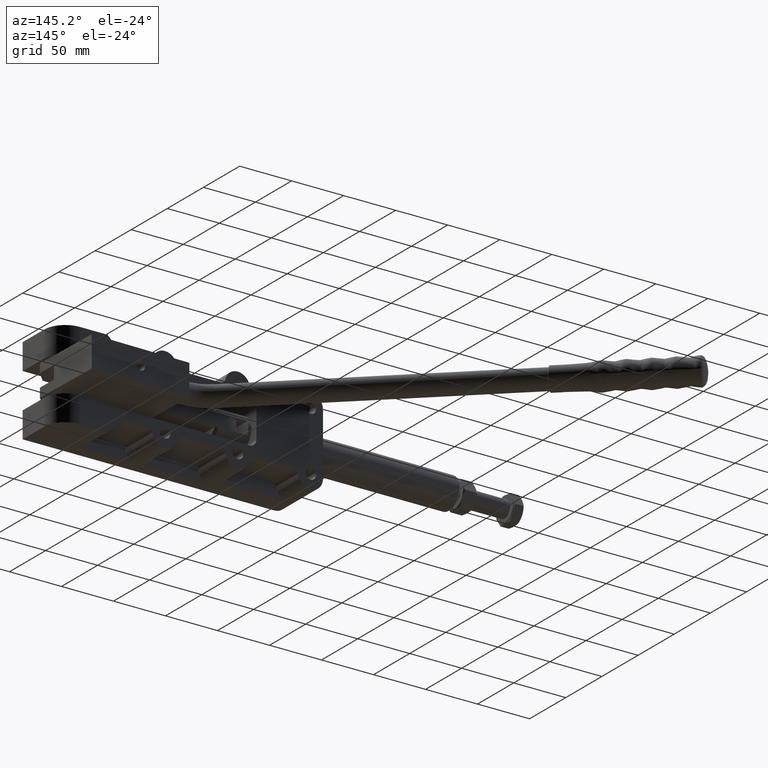
[diagram: clean part render]
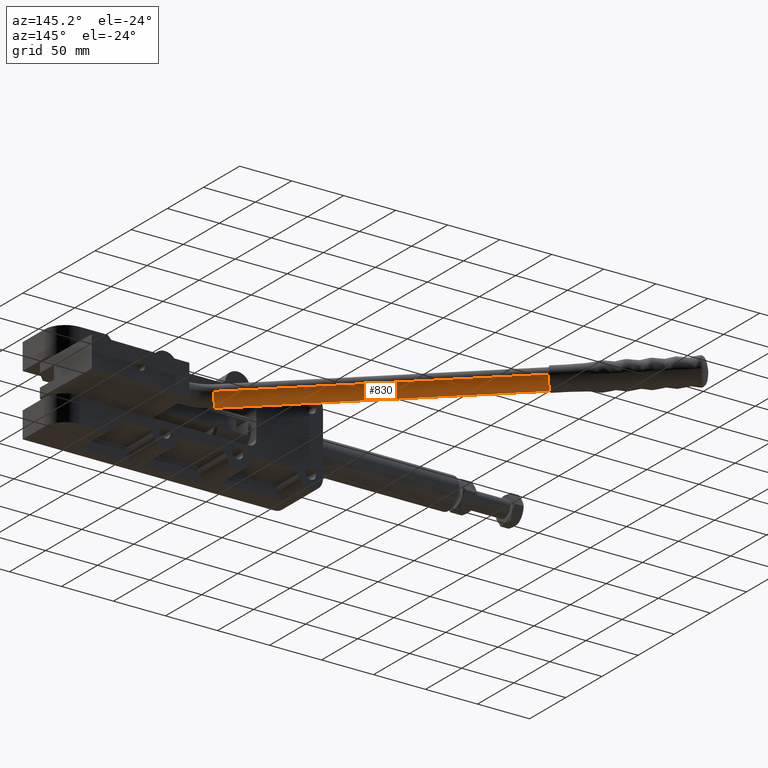
[diagram: same view with one face highlighted and labeled with its STEP entity id]
A machine part, auxiliary view. The second image highlights one B-rep face of the part: STEP entity #830.
In plain terms, the highlighted cylindrical surface (edge-blend (fillet) strip) has radius 9.5 mm, axis along (-0.7434, 0.6688, -0).
Its self-contained STEP definition (entity closure, byte-faithful):
#200 = AXIS2_PLACEMENT_3D ( 'NONE', #6602, #5911, #3967 ) ;
#322 = VERTEX_POINT ( 'NONE', #1526 ) ;
#418 = CARTESIAN_POINT ( 'NONE',  ( -2.891401611265669300, 80.86565504725446400, 0.1000000000002504400 ) ) ;
#604 = CIRCLE ( 'NONE', #2500, 9.499999999999998200 ) ;
#680 = VERTEX_POINT ( 'NONE', #1326 ) ;
#830 = ADVANCED_FACE ( 'NONE', ( #5174 ), #4500, .T. ) ;
#1326 = CARTESIAN_POINT ( 'NONE',  ( -9.376769798276992400, 73.92375332806386700, 0.1000000000002423700 ) ) ;
#1434 = DIRECTION ( 'NONE',  ( -0.7307264967569054900, 0.6826703354748764300, 2.065751085436755500E-015 ) ) ;
#1473 = CARTESIAN_POINT ( 'NONE',  ( 3.593966575745656500, 87.80755676644506000, 0.1000000000002596900 ) ) ;
#1526 = CARTESIAN_POINT ( 'NONE',  ( 3.593966575745655600, 87.80755676644506000, 0.1000000000002596900 ) ) ;
#1686 = CARTESIAN_POINT ( 'NONE',  ( -204.0442590349728100, 255.7889529247297000, 0.1000000000007926900 ) ) ;
#2077 = CARTESIAN_POINT ( 'NONE',  ( -9.376769798276994200, 73.92375332806386700, 0.1000000000002423700 ) ) ;
#2294 = EDGE_CURVE ( 'NONE', #4267, #6571, #5975, .T. ) ;
#2404 = EDGE_LOOP ( 'NONE', ( #4591, #2960, #5731, #4016 ) ) ;
#2500 = AXIS2_PLACEMENT_3D ( 'NONE', #5822, #2644, #6330 ) ;
#2644 = DIRECTION ( 'NONE',  ( 0.7307264967569052600, -0.6826703354748766600, -2.065751085436755500E-015 ) ) ;
#2690 = CARTESIAN_POINT ( 'NONE',  ( -191.0735226609501500, 269.6727563631108600, 0.1000000000008100100 ) ) ;
#2960 = ORIENTED_EDGE ( 'NONE', *, *, #4213, .F. ) ;
#3581 = DIRECTION ( 'NONE',  ( -0.6826703354748766600, -0.7307264967569051500, -8.502427563175801200E-016 ) ) ;
#3651 = LINE ( 'NONE', #2077, #4888 ) ;
#3804 = LINE ( 'NONE', #1473, #6283 ) ;
#3967 = DIRECTION ( 'NONE',  ( -0.6826703354748791000, -0.7307264967569028200, 0.0000000000000000000 ) ) ;
#4016 = ORIENTED_EDGE ( 'NONE', *, *, #2294, .F. ) ;
#4052 = AXIS2_PLACEMENT_3D ( 'NONE', #418, #1434, #3581 ) ;
#4176 = DIRECTION ( 'NONE',  ( -0.7307264967569053700, 0.6826703354748763200, 2.065751085436755100E-015 ) ) ;
#4213 = EDGE_CURVE ( 'NONE', #680, #322, #604, .T. ) ;
#4267 = VERTEX_POINT ( 'NONE', #2690 ) ;
#4500 = CYLINDRICAL_SURFACE ( 'NONE', #4052, 9.499999999999996400 ) ;
#4591 = ORIENTED_EDGE ( 'NONE', *, *, #6399, .F. ) ;
#4644 = DIRECTION ( 'NONE',  ( -0.7307264967569053700, 0.6826703354748763200, 2.065751085436755100E-015 ) ) ;
#4888 = VECTOR ( 'NONE', #4176, 1000.000000000000100 ) ;
#5174 = FACE_OUTER_BOUND ( 'NONE', #2404, .T. ) ;
#5731 = ORIENTED_EDGE ( 'NONE', *, *, #5999, .T. ) ;
#5822 = CARTESIAN_POINT ( 'NONE',  ( -2.891401611265669300, 80.86565504725446400, 0.1000000000002504400 ) ) ;
#5911 = DIRECTION ( 'NONE',  ( -0.7307264967569047100, 0.6826703354748771000, 2.333323979202567200E-015 ) ) ;
#5975 = CIRCLE ( 'NONE', #200, 9.499999999999987600 ) ;
#5999 = EDGE_CURVE ( 'NONE', #680, #6571, #3651, .T. ) ;
#6283 = VECTOR ( 'NONE', #4644, 1000.000000000000100 ) ;
#6330 = DIRECTION ( 'NONE',  ( -9.130123557772670100E-016, 1.460819769243627300E-015, -1.000000000000000000 ) ) ;
#6399 = EDGE_CURVE ( 'NONE', #322, #4267, #3804, .T. ) ;
#6571 = VERTEX_POINT ( 'NONE', #1686 ) ;
#6602 = CARTESIAN_POINT ( 'NONE',  ( -197.5588908479614600, 262.7308546439203400, 0.1000000000008007700 ) ) ;